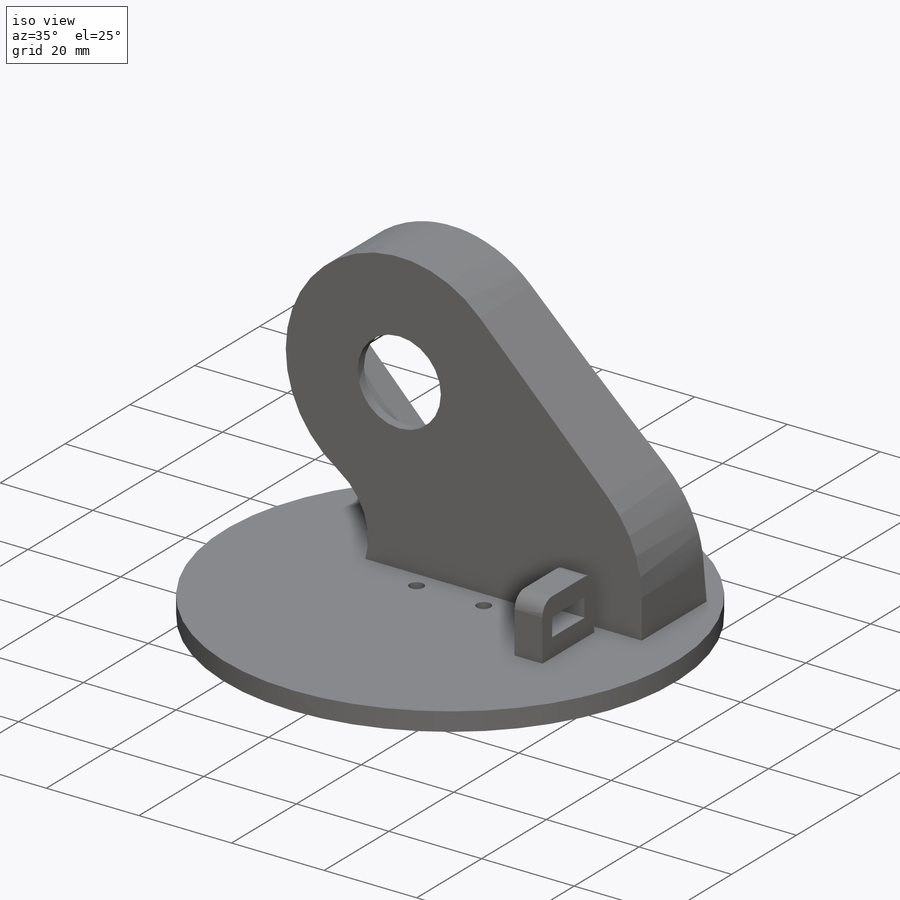
[diagram: iso view]
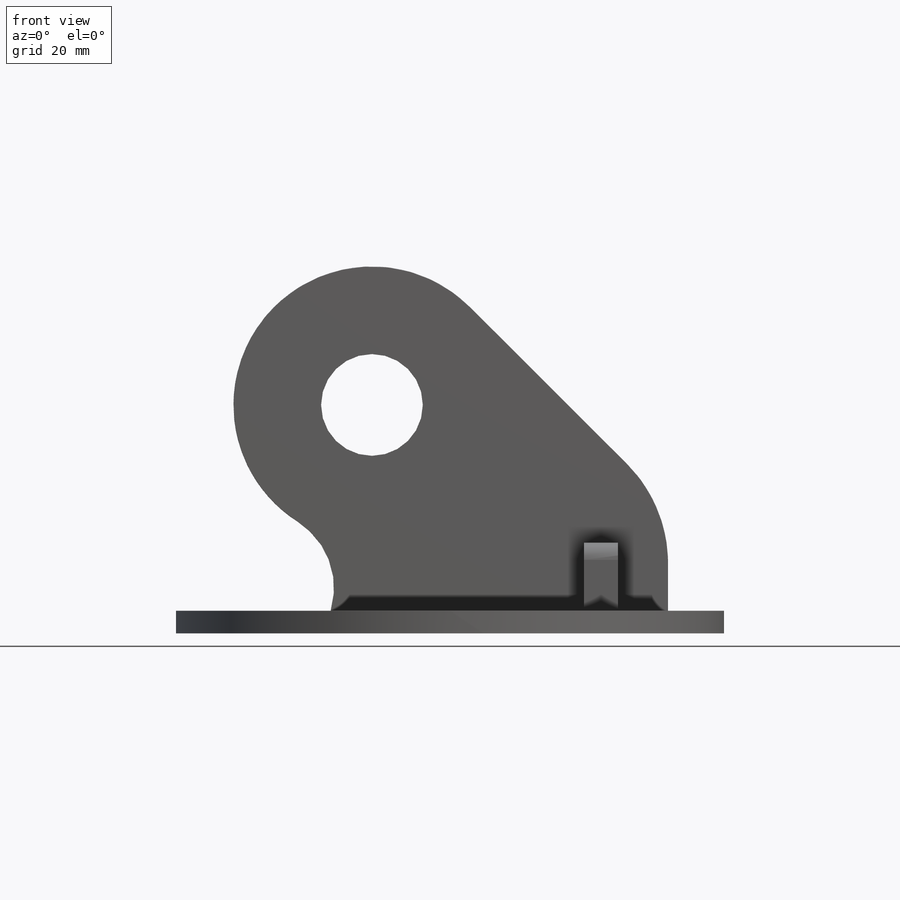
[diagram: front view]
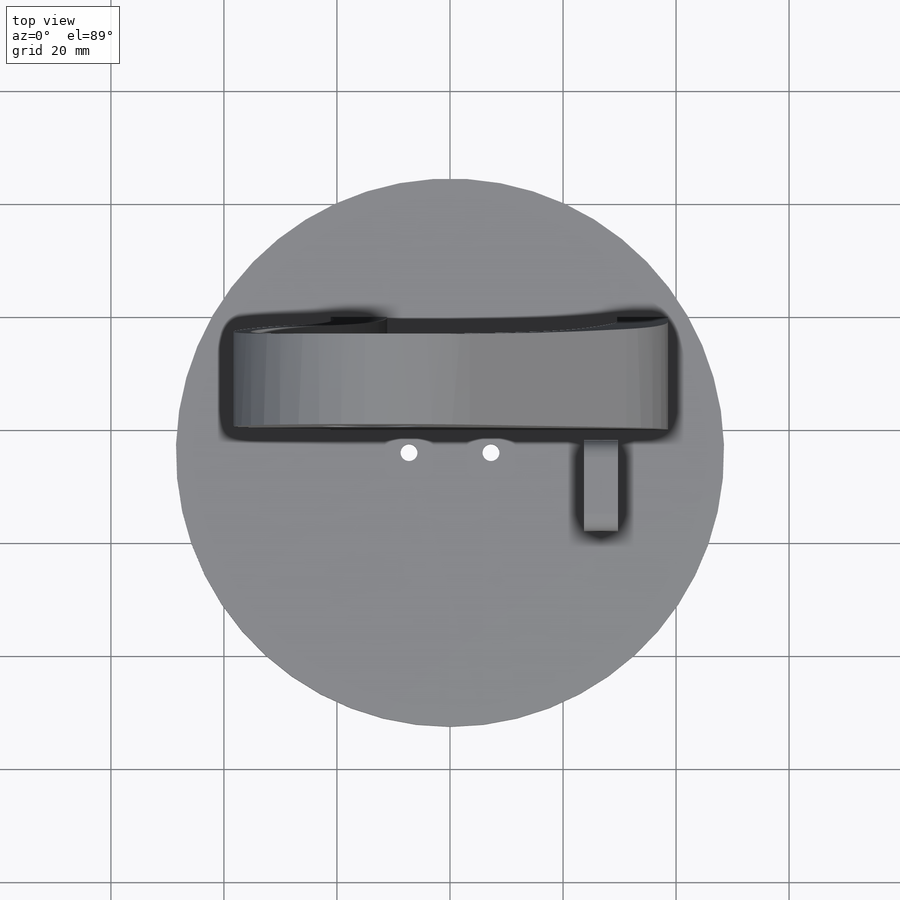
[diagram: top view]
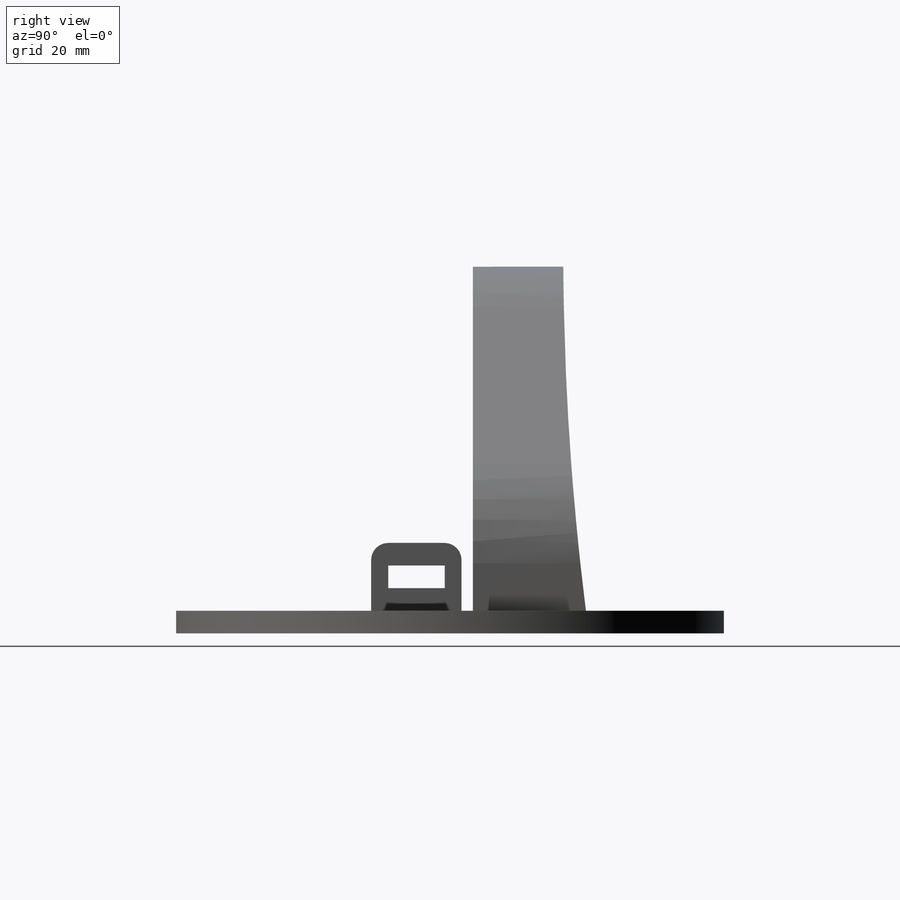
[diagram: right view]
SOLIDWORKS PART (.sldprt)
format: sldprt  version: not decoded by parser v0  size: 385,536 bytes
history: native  units: mm
features: sketch x10, cut_extrude x7, material x6, extrude x3, fillet x2, plane x1 (+10 scaffold rows collapsed)
feature tree (39):
  scaffold x10  (default folders/planes/origin — collapsed)
  material  "Malzeme <belirli değil>"
  material  "Üst Düzlem"
  material  "Sağ Düzlem"
  material  "Düzlem1"
  material  "Düzlem2"
  material  "Düzlem3"
  plane  "Ön Düzlem"
  sketch  "Çizim2"  dims[D1=97.0mm D5=3.0mm D6=3.0mm D2=4.0mm D3=7.25mm D4=14.5mm]
  extrude  "Yükseklik-Ekstrüzyon1"  Depth=4mm
  sketch  "Çizim3"  dims[c1.D1=18.0mm c1.D2=43.0mm c1.D3=49.0mm c1.D6=18.0mm c1.D9=2.6mm c1.D10=2.6mm c1.D11=2.6mm c2.D11=2.6mm c3.D11=2.6mm c4.D11=2.6mm c5.D11=2.6mm c6.D11=2.6mm c7.D11=2.6mm c8.D11=2.6mm c9.D11=2.6mm c9.D15=2.6mm c9.D16=2.6mm c9.D20=50.0mm c9.D21=50.0mm c9.D22=36.0mm c9.D24=10.0mm c9.D25=10.0mm c9.D4=10.5mm c9.D5=41.0mm c9.D6=10.25mm c9.D7=10.5mm c9.D8=41.0mm c9.D9=20.5mm c10.D11=10.0mm c10.D12=3.5mm c10.D13=5.5mm c10.D14=0.0mm c10.D17=10.0mm c10.D18=3.5mm c10.D19=5.5mm c10.D21=7.0mm c10.D23=9.0mm c10.D26=10.0mm c11.D13=~167.554708deg]
  extrude  "Yükseklik-Ekstrüzyon2"  Depth=20mm
  sketch  "Çizim5"  dims[D1=10.0mm]
  cut_extrude  "Kes-Ekstrüzyon2"  Depth=9mm
  sketch  "Çizim7"
  cut_extrude  "Kes-Ekstrüzyon4"  Depth=18mm
  sketch  "Çizim8"  dims[D1=~17.998747mm]
  cut_extrude  "Kes-Ekstrüzyon6"  Depth=20mm
  sketch  "Çizim10"
  cut_extrude  "Kes-Ekstrüzyon7"  Depth=13mm
  sketch  "3B Çizim1"  dims[D1=16.0mm D2=6.0mm D3=2.0mm]
  extrude  "Yükseklik-Ekstrüzyon3"  Depth=12mm
  fillet  "Radyus1"  Radius=3mm
  fillet  "Radyus2"  Radius=3mm
  sketch  "Çizim11"  dims[D1=4.0mm D2=4.0mm D3=10.0mm]
  cut_extrude  "Kes-Ekstrüzyon8"  Depth=6mm
  sketch  "Çizim12"  dims[D1=~8.001265mm]
  cut_extrude  "Kes-Ekstrüzyon9"  Depth=2mm
  sketch  "Çizim13"  dims[D1=4.0mm]
  cut_extrude  "Kes-Ekstrüzyon10"  Depth=40mm
decode coverage: 20 of 22 modeling features carry decoded parameters
note: ~ marks probable driven/reference dimensions
note: suppression state not decoded; provenance and decode notes live in map.json
